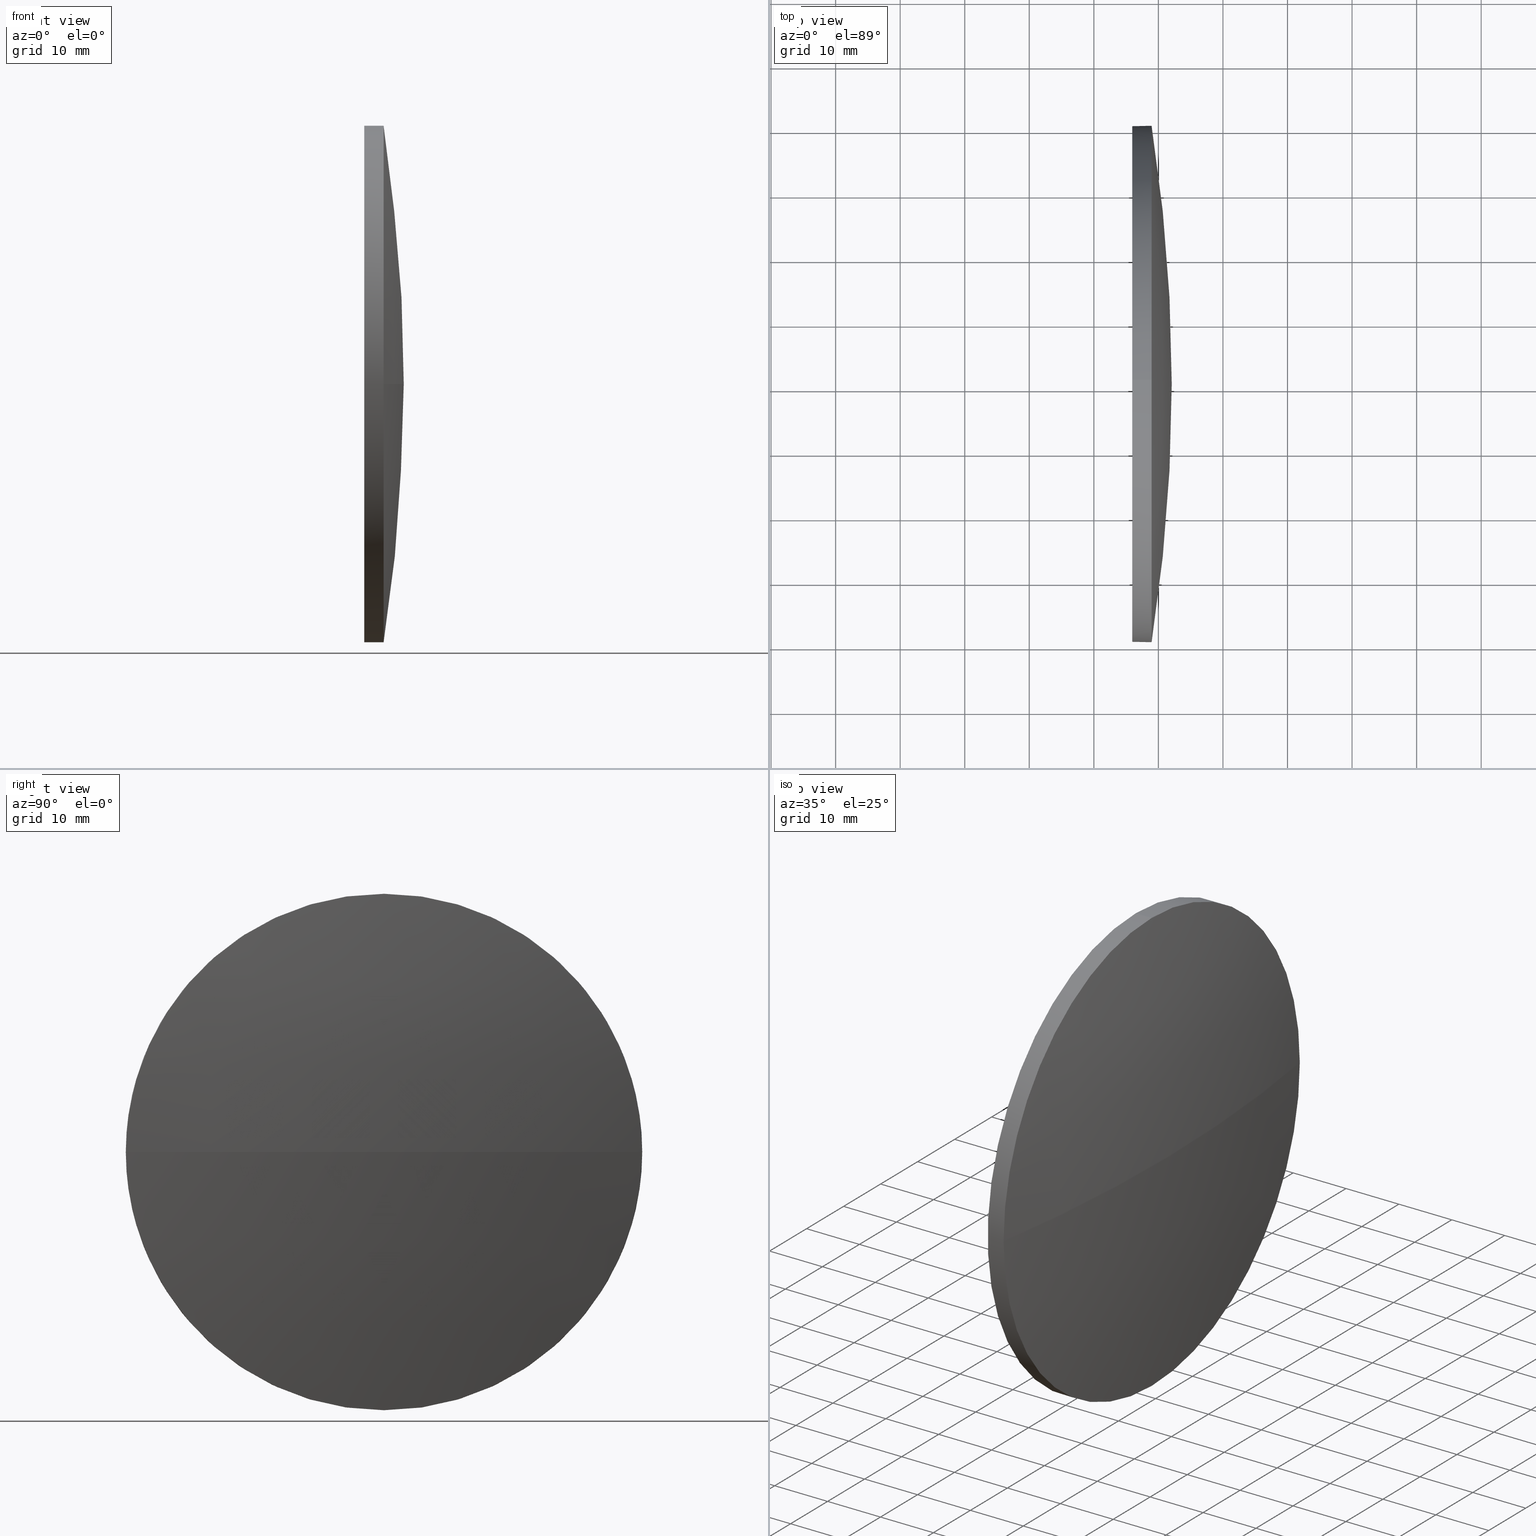
[diagram: canonical four-view strip — front | top / right | iso, engineering-drawing reading convention]
A machine part, canonical four-view strip (front | top / right | iso — engineering-drawing reading convention). The complete STEP part file that produces these views, byte-faithful:
ISO-10303-21;
HEADER;
FILE_DESCRIPTION (( 'STEP AP214' ),
    '1' );
FILE_NAME ('100167.STEP',
    '2019-05-17T03:34:19',
    ( '' ),
    ( '' ),
    'SwSTEP 2.0',
    'SolidWorks 2016',
    '' );
FILE_SCHEMA (( 'AUTOMOTIVE_DESIGN' ));
ENDSEC;

DATA;
#1 =( GEOMETRIC_REPRESENTATION_CONTEXT ( 3 ) GLOBAL_UNCERTAINTY_ASSIGNED_CONTEXT ( ( #53 ) ) GLOBAL_UNIT_ASSIGNED_CONTEXT ( ( #61, #166, #179 ) ) REPRESENTATION_CONTEXT ( 'NONE', 'WORKASPACE' ) );
#2 = PRODUCT_DEFINITION_FORMATION_WITH_SPECIFIED_SOURCE ( '�κ�', '', #90, .NOT_KNOWN. ) ;
#3 = ADVANCED_BREP_SHAPE_REPRESENTATION ( '100167', ( #111, #7 ), #173 ) ;
#4 = DIRECTION ( 'NONE',  ( 1.000000000000000000, 0.0000000000000000000, 0.0000000000000000000 ) ) ;
#5 = STYLED_ITEM ( 'NONE', ( #71 ), #111 ) ;
#6 = DIRECTION ( 'NONE',  ( -0.0000000000000000000, 0.0000000000000000000, 1.000000000000000000 ) ) ;
#7 = AXIS2_PLACEMENT_3D ( 'NONE', #20, #126, #156 ) ;
#8 = CARTESIAN_POINT ( 'NONE',  ( 228.9490942240209100, 130.4671098528244200, 40.00000000000000700 ) ) ;
#9 = DIRECTION ( 'NONE',  ( -1.000000000000000000, -0.0000000000000000000, -0.0000000000000000000 ) ) ;
#10 = AXIS2_PLACEMENT_3D ( 'NONE', #177, #130, #165 ) ;
#11 = PRODUCT_RELATED_PRODUCT_CATEGORY ( 'part', '', ( #90 ) ) ;
#12 = ADVANCED_FACE ( 'NONE', ( #25 ), #13, .F. ) ;
#13 = PLANE ( 'NONE',  #116 ) ;
#14 = DIRECTION ( 'NONE',  ( -1.000000000000000000, -0.0000000000000000000, -0.0000000000000000000 ) ) ;
#15 = ORIENTED_EDGE ( 'NONE', *, *, #28, .F. ) ;
#16 = CARTESIAN_POINT ( 'NONE',  ( 217.9945825323866300, 130.4671098528244200, 40.00000000000000700 ) ) ;
#17 = AXIS2_PLACEMENT_3D ( 'NONE', #151, #9, #65 ) ;
#18 = DIRECTION ( 'NONE',  ( -0.0000000000000000000, 0.0000000000000000000, -1.000000000000000000 ) ) ;
#19 = ORIENTED_EDGE ( 'NONE', *, *, #31, .F. ) ;
#20 = CARTESIAN_POINT ( 'NONE',  ( 0.0000000000000000000, 0.0000000000000000000, 0.0000000000000000000 ) ) ;
#21 = DIRECTION ( 'NONE',  ( 0.0000000000000000000, 1.000000000000000000, 0.0000000000000000000 ) ) ;
#22 = CARTESIAN_POINT ( 'NONE',  ( 217.9945825323866300, 130.4671098528244200, 0.0000000000000000000 ) ) ;
#23 = ADVANCED_FACE ( 'NONE', ( #91 ), #48, .T. ) ;
#24 = CIRCLE ( 'NONE', #121, 40.00000000000000700 ) ;
#25 = FACE_OUTER_BOUND ( 'NONE', #181, .T. ) ;
#26 = ORIENTED_EDGE ( 'NONE', *, *, #44, .T. ) ;
#27 = DIRECTION ( 'NONE',  ( 0.0000000000000000000, 0.0000000000000000000, 1.000000000000000000 ) ) ;
#28 = EDGE_CURVE ( 'NONE', #142, #148, #75, .T. ) ;
#29 = LINE ( 'NONE', #33, #43 ) ;
#30 = DIRECTION ( 'NONE',  ( -1.000000000000000000, -0.0000000000000000000, -0.0000000000000000000 ) ) ;
#31 = EDGE_CURVE ( 'NONE', #178, #128, #115, .T. ) ;
#32 = CARTESIAN_POINT ( 'NONE',  ( 228.9490942240209100, 130.4671098528244200, 0.0000000000000000000 ) ) ;
#33 = CARTESIAN_POINT ( 'NONE',  ( 217.9945825323866300, 130.4671098528244200, -40.00000000000000700 ) ) ;
#34 = DIRECTION ( 'NONE',  ( -0.0000000000000000000, 0.0000000000000000000, -1.000000000000000000 ) ) ;
#35 = STYLED_ITEM ( 'NONE', ( #88 ), #3 ) ;
#36 = ORIENTED_EDGE ( 'NONE', *, *, #164, .T. ) ;
#37 = EDGE_CURVE ( 'NONE', #170, #148, #73, .T. ) ;
#38 = CIRCLE ( 'NONE', #17, 40.00000000000000700 ) ;
#39 = EDGE_CURVE ( 'NONE', #142, #78, #140, .T. ) ;
#40 = ORIENTED_EDGE ( 'NONE', *, *, #31, .T. ) ;
#41 = AXIS2_PLACEMENT_3D ( 'NONE', #32, #123, #136 ) ;
#42 =( GEOMETRIC_REPRESENTATION_CONTEXT ( 3 ) GLOBAL_UNCERTAINTY_ASSIGNED_CONTEXT ( ( #46 ) ) GLOBAL_UNIT_ASSIGNED_CONTEXT ( ( #63, #66, #168 ) ) REPRESENTATION_CONTEXT ( 'NONE', 'WORKASPACE' ) );
#43 = VECTOR ( 'NONE', #124, 1000.000000000000000 ) ;
#44 = EDGE_CURVE ( 'NONE', #183, #128, #143, .T. ) ;
#45 = APPLICATION_PROTOCOL_DEFINITION ( 'draft international standard', 'automotive_design', 1998, #185 ) ;
#46 = UNCERTAINTY_MEASURE_WITH_UNIT (LENGTH_MEASURE( 1.000000000000000100E-005 ), #63, 'distance_accuracy_value', 'NONE');
#47 = FILL_AREA_STYLE ('',( #80 ) ) ;
#48 = CYLINDRICAL_SURFACE ( 'NONE', #106, 40.00000000000000700 ) ;
#49 = AXIS2_PLACEMENT_3D ( 'NONE', #57, #6, #4 ) ;
#50 = FILL_AREA_STYLE_COLOUR ( '', #131 ) ;
#51 = DIRECTION ( 'NONE',  ( -1.000000000000000000, -0.0000000000000000000, -0.0000000000000000000 ) ) ;
#52 = ORIENTED_EDGE ( 'NONE', *, *, #164, .F. ) ;
#53 = UNCERTAINTY_MEASURE_WITH_UNIT (LENGTH_MEASURE( 1.000000000000000100E-005 ), #61, 'distance_accuracy_value', 'NONE');
#54 = DIRECTION ( 'NONE',  ( 0.0000000000000000000, 0.0000000000000000000, -1.000000000000000000 ) ) ;
#55 = EDGE_LOOP ( 'NONE', ( #172, #125, #59, #85 ) ) ;
#56 = CIRCLE ( 'NONE', #158, 40.00000000000000700 ) ;
#57 = CARTESIAN_POINT ( 'NONE',  ( -25.90116218623498400, 130.4671098528244200, 0.0000000000000000000 ) ) ;
#58 = PRODUCT_DEFINITION_CONTEXT ( 'detailed design', #139, 'design' ) ;
#59 = ORIENTED_EDGE ( 'NONE', *, *, #37, .F. ) ;
#60 = SPHERICAL_SURFACE ( 'NONE', #145, 257.9702564102559000 ) ;
#61 =( LENGTH_UNIT ( ) NAMED_UNIT ( * ) SI_UNIT ( .MILLI., .METRE. ) );
#62 = PRODUCT_DEFINITION ( 'δ֪', '', #2, #58 ) ;
#63 =( LENGTH_UNIT ( ) NAMED_UNIT ( * ) SI_UNIT ( .MILLI., .METRE. ) );
#64 = ORIENTED_EDGE ( 'NONE', *, *, #39, .T. ) ;
#65 = DIRECTION ( 'NONE',  ( 0.0000000000000000000, 0.0000000000000000000, 1.000000000000000000 ) ) ;
#66 =( NAMED_UNIT ( * ) PLANE_ANGLE_UNIT ( ) SI_UNIT ( $, .RADIAN. ) );
#67 = FACE_OUTER_BOUND ( 'NONE', #99, .T. ) ;
#68 = SURFACE_SIDE_STYLE ('',( #122 ) ) ;
#69 = EDGE_CURVE ( 'NONE', #78, #170, #24, .T. ) ;
#70 = ADVANCED_FACE ( 'NONE', ( #67 ), #175, .T. ) ;
#71 = PRESENTATION_STYLE_ASSIGNMENT (( #86 ) ) ;
#72 = PRODUCT_CONTEXT ( 'NONE', #185, 'mechanical' ) ;
#73 = CIRCLE ( 'NONE', #113, 40.00000000000000700 ) ;
#74 = SHAPE_DEFINITION_REPRESENTATION ( #161, #3 ) ;
#75 = CIRCLE ( 'NONE', #10, 257.9702564102559600 ) ;
#76 = CARTESIAN_POINT ( 'NONE',  ( 225.9490942240209100, 130.4671098528244200, 0.0000000000000000000 ) ) ;
#77 = CYLINDRICAL_SURFACE ( 'NONE', #132, 40.00000000000000700 ) ;
#78 = VERTEX_POINT ( 'NONE', #92 ) ;
#79 = DIRECTION ( 'NONE',  ( 0.0000000000000000000, 0.0000000000000000000, 1.000000000000000000 ) ) ;
#80 = FILL_AREA_STYLE_COLOUR ( '', #163 ) ;
#81 = CARTESIAN_POINT ( 'NONE',  ( 232.0690942240209200, 130.4671098528244500, 0.0000000000000000000 ) ) ;
#82 = VECTOR ( 'NONE', #107, 1000.000000000000000 ) ;
#83 = CARTESIAN_POINT ( 'NONE',  ( 228.9490942240209100, 130.4671098528244200, -40.00000000000000700 ) ) ;
#84 = EDGE_CURVE ( 'NONE', #148, #183, #138, .T. ) ;
#85 = ORIENTED_EDGE ( 'NONE', *, *, #69, .F. ) ;
#86 = SURFACE_STYLE_USAGE ( .BOTH. , #149 ) ;
#87 = ADVANCED_FACE ( 'NONE', ( #167 ), #77, .T. ) ;
#88 = PRESENTATION_STYLE_ASSIGNMENT (( #108 ) ) ;
#89 = PRESENTATION_LAYER_ASSIGNMENT (  '', '', ( #35 ) ) ;
#90 = PRODUCT ( '100167', '100167', '', ( #72 ) ) ;
#91 = FACE_OUTER_BOUND ( 'NONE', #159, .T. ) ;
#92 = CARTESIAN_POINT ( 'NONE',  ( 228.9490942240209100, 170.4671098528244500, 0.0000000000000000000 ) ) ;
#93 = DIRECTION ( 'NONE',  ( -1.000000000000000000, -0.0000000000000000000, -0.0000000000000000000 ) ) ;
#94 = CARTESIAN_POINT ( 'NONE',  ( 225.9490942240209100, 130.4671098528244200, 0.0000000000000000000 ) ) ;
#95 = ORIENTED_EDGE ( 'NONE', *, *, #84, .F. ) ;
#96 = EDGE_CURVE ( 'NONE', #183, #78, #38, .T. ) ;
#97 = CARTESIAN_POINT ( 'NONE',  ( 228.9490942240209100, 90.46710985282437900, -4.898587196589416200E-015 ) ) ;
#98 =( NAMED_UNIT ( * ) SI_UNIT ( $, .STERADIAN. ) SOLID_ANGLE_UNIT ( ) );
#99 = EDGE_LOOP ( 'NONE', ( #15, #64, #104, #95 ) ) ;
#100 = EDGE_LOOP ( 'NONE', ( #157, #174, #112, #26, #19 ) ) ;
#101 = EDGE_CURVE ( 'NONE', #170, #178, #29, .T. ) ;
#102 = DIRECTION ( 'NONE',  ( 1.000000000000000000, 0.0000000000000000000, 0.0000000000000000000 ) ) ;
#103 = SURFACE_STYLE_FILL_AREA ( #147 ) ;
#104 = ORIENTED_EDGE ( 'NONE', *, *, #96, .F. ) ;
#105 = ORIENTED_EDGE ( 'NONE', *, *, #101, .T. ) ;
#106 = AXIS2_PLACEMENT_3D ( 'NONE', #162, #14, #27 ) ;
#107 = DIRECTION ( 'NONE',  ( -1.000000000000000000, -0.0000000000000000000, -0.0000000000000000000 ) ) ;
#108 = SURFACE_STYLE_USAGE ( .BOTH. , #68 ) ;
#109 = ORIENTED_EDGE ( 'NONE', *, *, #44, .F. ) ;
#110 = DIRECTION ( 'NONE',  ( 0.0000000000000000000, 0.0000000000000000000, 1.000000000000000000 ) ) ;
#111 = MANIFOLD_SOLID_BREP ( '��ת1', #134 ) ;
#112 = ORIENTED_EDGE ( 'NONE', *, *, #84, .T. ) ;
#113 = AXIS2_PLACEMENT_3D ( 'NONE', #146, #30, #117 ) ;
#114 = AXIS2_PLACEMENT_3D ( 'NONE', #94, #176, #79 ) ;
#115 = CIRCLE ( 'NONE', #114, 40.00000000000000700 ) ;
#116 = AXIS2_PLACEMENT_3D ( 'NONE', #76, #102, #54 ) ;
#117 = DIRECTION ( 'NONE',  ( 0.0000000000000000000, 0.0000000000000000000, 1.000000000000000000 ) ) ;
#118 = CARTESIAN_POINT ( 'NONE',  ( 228.9490942240209100, 130.4671098528244200, 0.0000000000000000000 ) ) ;
#119 = DIRECTION ( 'NONE',  ( -1.000000000000000000, -0.0000000000000000000, -0.0000000000000000000 ) ) ;
#120 = DIRECTION ( 'NONE',  ( 0.0000000000000000000, 1.000000000000000000, 0.0000000000000000000 ) ) ;
#121 = AXIS2_PLACEMENT_3D ( 'NONE', #118, #93, #184 ) ;
#122 = SURFACE_STYLE_FILL_AREA ( #47 ) ;
#123 = DIRECTION ( 'NONE',  ( -1.000000000000000000, -0.0000000000000000000, -0.0000000000000000000 ) ) ;
#124 = DIRECTION ( 'NONE',  ( -1.000000000000000000, -0.0000000000000000000, -0.0000000000000000000 ) ) ;
#125 = ORIENTED_EDGE ( 'NONE', *, *, #28, .T. ) ;
#126 = DIRECTION ( 'NONE',  ( 0.0000000000000000000, 0.0000000000000000000, 1.000000000000000000 ) ) ;
#127 = ORIENTED_EDGE ( 'NONE', *, *, #69, .T. ) ;
#128 = VERTEX_POINT ( 'NONE', #180 ) ;
#129 = ORIENTED_EDGE ( 'NONE', *, *, #96, .T. ) ;
#130 = DIRECTION ( 'NONE',  ( 0.0000000000000000000, 1.224646799147353200E-016, -1.000000000000000000 ) ) ;
#131 = COLOUR_RGB ( '',1.000000000000000000, 1.000000000000000000, 1.000000000000000000 ) ;
#132 = AXIS2_PLACEMENT_3D ( 'NONE', #22, #119, #110 ) ;
#133 = CARTESIAN_POINT ( 'NONE',  ( -25.90116218623498400, 130.4671098528244200, 0.0000000000000000000 ) ) ;
#134 = CLOSED_SHELL ( 'NONE', ( #23, #155, #70, #87, #12 ) ) ;
#135 = CARTESIAN_POINT ( 'NONE',  ( -25.90116218623498400, 130.4671098528244200, 0.0000000000000000000 ) ) ;
#136 = DIRECTION ( 'NONE',  ( 0.0000000000000000000, 0.0000000000000000000, 1.000000000000000000 ) ) ;
#137 = MECHANICAL_DESIGN_GEOMETRIC_PRESENTATION_REPRESENTATION (  '', ( #5 ), #42 ) ;
#138 = CIRCLE ( 'NONE', #41, 40.00000000000000700 ) ;
#139 = APPLICATION_CONTEXT ( 'automotive_design' ) ;
#140 = CIRCLE ( 'NONE', #49, 257.9702564102559000 ) ;
#141 = AXIS2_PLACEMENT_3D ( 'NONE', #133, #18, #120 ) ;
#142 = VERTEX_POINT ( 'NONE', #81 ) ;
#143 = LINE ( 'NONE', #16, #82 ) ;
#144 = FACE_OUTER_BOUND ( 'NONE', #55, .T. ) ;
#145 = AXIS2_PLACEMENT_3D ( 'NONE', #135, #34, #21 ) ;
#146 = CARTESIAN_POINT ( 'NONE',  ( 228.9490942240209100, 130.4671098528244200, 0.0000000000000000000 ) ) ;
#147 = FILL_AREA_STYLE ('',( #50 ) ) ;
#148 = VERTEX_POINT ( 'NONE', #97 ) ;
#149 = SURFACE_SIDE_STYLE ('',( #103 ) ) ;
#150 = PRESENTATION_LAYER_ASSIGNMENT (  '', '', ( #5 ) ) ;
#151 = CARTESIAN_POINT ( 'NONE',  ( 228.9490942240209100, 130.4671098528244200, 0.0000000000000000000 ) ) ;
#152 =( LENGTH_UNIT ( ) NAMED_UNIT ( * ) SI_UNIT ( .MILLI., .METRE. ) );
#153 = DIRECTION ( 'NONE',  ( 0.0000000000000000000, 0.0000000000000000000, 1.000000000000000000 ) ) ;
#154 = APPLICATION_PROTOCOL_DEFINITION ( 'draft international standard', 'automotive_design', 1998, #139 ) ;
#155 = ADVANCED_FACE ( 'NONE', ( #144 ), #60, .T. ) ;
#156 = DIRECTION ( 'NONE',  ( 1.000000000000000000, 0.0000000000000000000, 0.0000000000000000000 ) ) ;
#157 = ORIENTED_EDGE ( 'NONE', *, *, #101, .F. ) ;
#158 = AXIS2_PLACEMENT_3D ( 'NONE', #169, #51, #153 ) ;
#159 = EDGE_LOOP ( 'NONE', ( #127, #105, #52, #109, #129 ) ) ;
#160 = UNCERTAINTY_MEASURE_WITH_UNIT (LENGTH_MEASURE( 1.000000000000000100E-005 ), #152, 'distance_accuracy_value', 'NONE');
#161 = PRODUCT_DEFINITION_SHAPE ( 'NONE', 'NONE',  #62 ) ;
#162 = CARTESIAN_POINT ( 'NONE',  ( 217.9945825323866300, 130.4671098528244200, 0.0000000000000000000 ) ) ;
#163 = COLOUR_RGB ( '',1.000000000000000000, 1.000000000000000000, 1.000000000000000000 ) ;
#164 = EDGE_CURVE ( 'NONE', #128, #178, #56, .T. ) ;
#165 = DIRECTION ( 'NONE',  ( 0.0000000000000000000, 1.000000000000000000, 1.224646799147353000E-016 ) ) ;
#166 =( NAMED_UNIT ( * ) PLANE_ANGLE_UNIT ( ) SI_UNIT ( $, .RADIAN. ) );
#167 = FACE_OUTER_BOUND ( 'NONE', #100, .T. ) ;
#168 =( NAMED_UNIT ( * ) SI_UNIT ( $, .STERADIAN. ) SOLID_ANGLE_UNIT ( ) );
#169 = CARTESIAN_POINT ( 'NONE',  ( 225.9490942240209100, 130.4671098528244200, 0.0000000000000000000 ) ) ;
#170 = VERTEX_POINT ( 'NONE', #83 ) ;
#171 =( NAMED_UNIT ( * ) PLANE_ANGLE_UNIT ( ) SI_UNIT ( $, .RADIAN. ) );
#172 = ORIENTED_EDGE ( 'NONE', *, *, #39, .F. ) ;
#173 =( GEOMETRIC_REPRESENTATION_CONTEXT ( 3 ) GLOBAL_UNCERTAINTY_ASSIGNED_CONTEXT ( ( #160 ) ) GLOBAL_UNIT_ASSIGNED_CONTEXT ( ( #152, #171, #98 ) ) REPRESENTATION_CONTEXT ( 'NONE', 'WORKASPACE' ) );
#174 = ORIENTED_EDGE ( 'NONE', *, *, #37, .T. ) ;
#175 = SPHERICAL_SURFACE ( 'NONE', #141, 257.9702564102559000 ) ;
#176 = DIRECTION ( 'NONE',  ( -1.000000000000000000, -0.0000000000000000000, -0.0000000000000000000 ) ) ;
#177 = CARTESIAN_POINT ( 'NONE',  ( -25.90116218623498400, 130.4671098528244200, 0.0000000000000000000 ) ) ;
#178 = VERTEX_POINT ( 'NONE', #182 ) ;
#179 =( NAMED_UNIT ( * ) SI_UNIT ( $, .STERADIAN. ) SOLID_ANGLE_UNIT ( ) );
#180 = CARTESIAN_POINT ( 'NONE',  ( 225.9490942240209100, 130.4671098528244200, 40.00000000000000700 ) ) ;
#181 = EDGE_LOOP ( 'NONE', ( #36, #40 ) ) ;
#182 = CARTESIAN_POINT ( 'NONE',  ( 225.9490942240209100, 130.4671098528244200, -40.00000000000000700 ) ) ;
#183 = VERTEX_POINT ( 'NONE', #8 ) ;
#184 = DIRECTION ( 'NONE',  ( 0.0000000000000000000, 0.0000000000000000000, 1.000000000000000000 ) ) ;
#185 = APPLICATION_CONTEXT ( 'automotive_design' ) ;
#186 = MECHANICAL_DESIGN_GEOMETRIC_PRESENTATION_REPRESENTATION (  '', ( #35 ), #1 ) ;
ENDSEC;
END-ISO-10303-21;
